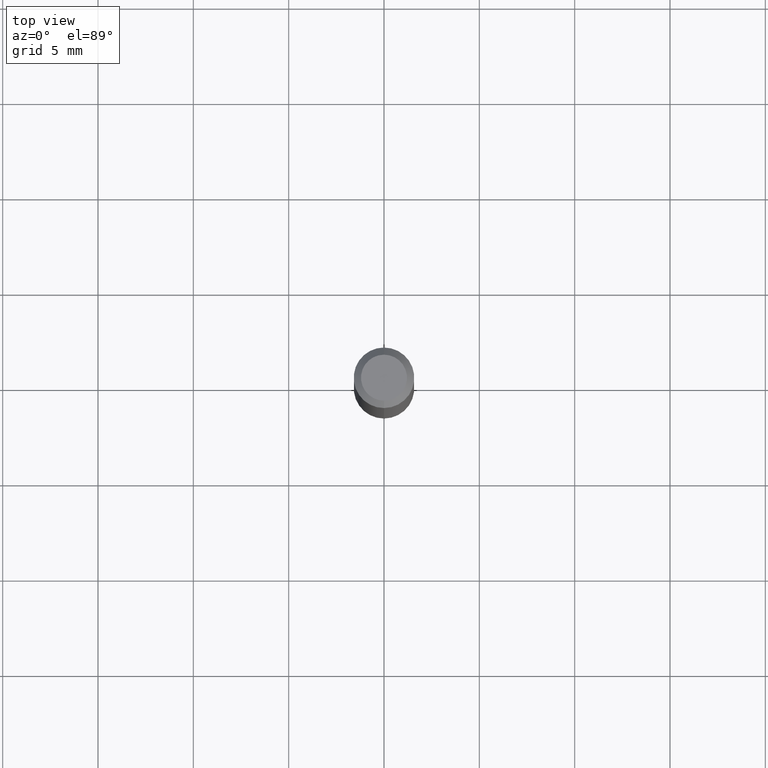
[diagram: clean part render]
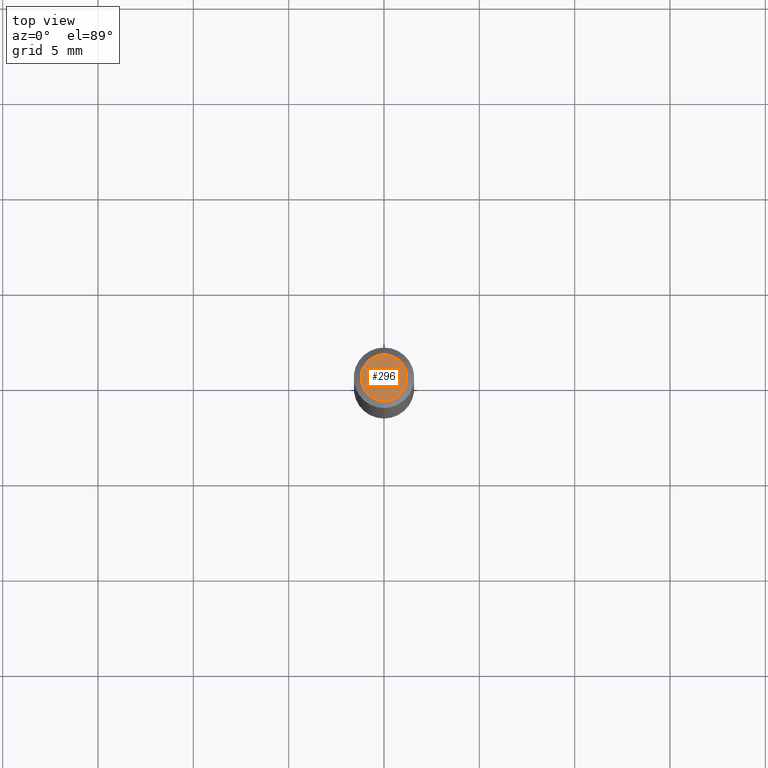
[diagram: same view with one face highlighted and labeled with its STEP entity id]
A machine part, top view. The second image highlights one B-rep face of the part: STEP entity #296.
In plain terms, the highlighted planar face has unit normal (0, -0, -1).
Its self-contained STEP definition (entity closure, byte-faithful):
#5 = CARTESIAN_POINT ( 'NONE',  ( 3.840629472727447874E-16, 0.04749999999999999362, -1.747056831868805136E-16 ) ) ;
#30 = DIRECTION ( 'NONE',  ( 2.445232611711644426E-29, -3.491819582772540483E-15, -1.000000000000000000 ) ) ;
#51 = DIRECTION ( 'NONE',  ( -2.445232611711644986E-29, 3.491819582772540088E-15, 1.000000000000000000 ) ) ;
#55 = EDGE_CURVE ( 'NONE', #473, #439, #184, .T. ) ;
#59 = AXIS2_PLACEMENT_3D ( 'NONE', #378, #30, #347 ) ;
#81 = ORIENTED_EDGE ( 'NONE', *, *, #196, .T. ) ;
#99 = DIRECTION ( 'NONE',  ( -2.445232611711644986E-29, 3.491819582772540088E-15, 1.000000000000000000 ) ) ;
#184 = CIRCLE ( 'NONE', #422, 0.04749999999999999362 ) ;
#196 = EDGE_CURVE ( 'NONE', #439, #473, #256, .T. ) ;
#244 = CARTESIAN_POINT ( 'NONE',  ( -3.773273898774340269E-16, -0.04749999999999999362, 1.570171771765107987E-16 ) ) ;
#256 = CIRCLE ( 'NONE', #437, 0.04749999999999999362 ) ;
#262 = EDGE_LOOP ( 'NONE', ( #81, #505 ) ) ;
#292 = FACE_OUTER_BOUND ( 'NONE', #262, .T. ) ;
#296 = ADVANCED_FACE ( 'NONE', ( #292 ), #383, .F. ) ;
#340 = DIRECTION ( 'NONE',  ( -6.982962677686266711E-15, -1.000000000000000000, 3.491819582772540483E-15 ) ) ;
#347 = DIRECTION ( 'NONE',  ( 6.982962677686265922E-15, 1.000000000000000000, -3.491819582772540483E-15 ) ) ;
#378 = CARTESIAN_POINT ( 'NONE',  ( 3.316907271900976096E-16, 0.04749999999999999362, -1.702835566842880726E-16 ) ) ;
#380 = CARTESIAN_POINT ( 'NONE',  ( 2.162625587450672198E-46, -3.088253583849936035E-32, -8.844253005184854386E-18 ) ) ;
#383 = PLANE ( 'NONE',  #59 ) ;
#412 = DIRECTION ( 'NONE',  ( -6.982962677686266711E-15, -1.000000000000000000, 3.491819582772540483E-15 ) ) ;
#422 = AXIS2_PLACEMENT_3D ( 'NONE', #442, #51, #412 ) ;
#437 = AXIS2_PLACEMENT_3D ( 'NONE', #380, #99, #340 ) ;
#439 = VERTEX_POINT ( 'NONE', #5 ) ;
#442 = CARTESIAN_POINT ( 'NONE',  ( 2.162625587450672198E-46, -3.088253583849936035E-32, -8.844253005184854386E-18 ) ) ;
#473 = VERTEX_POINT ( 'NONE', #244 ) ;
#505 = ORIENTED_EDGE ( 'NONE', *, *, #55, .T. ) ;